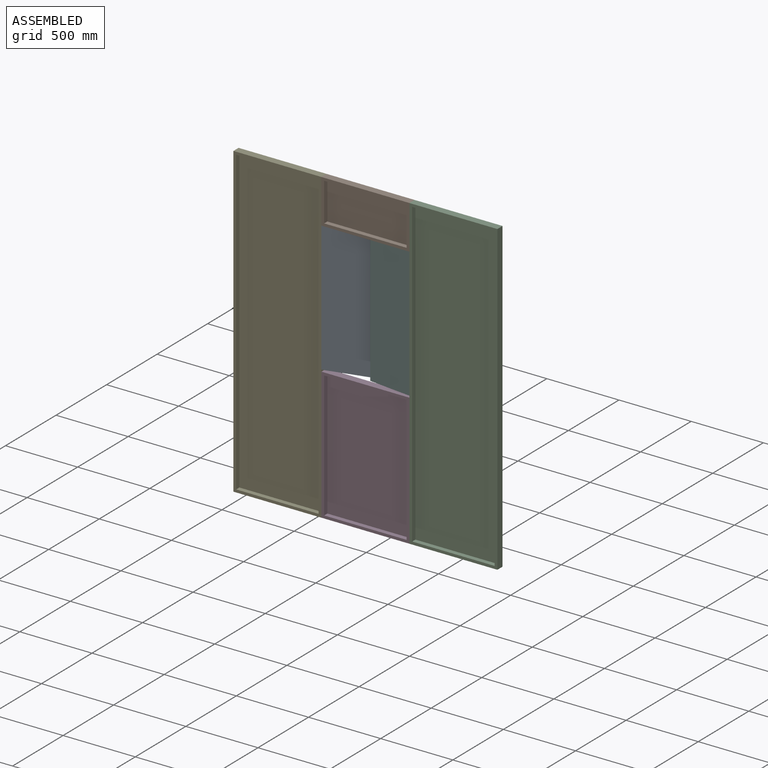
[diagram: assembled view]
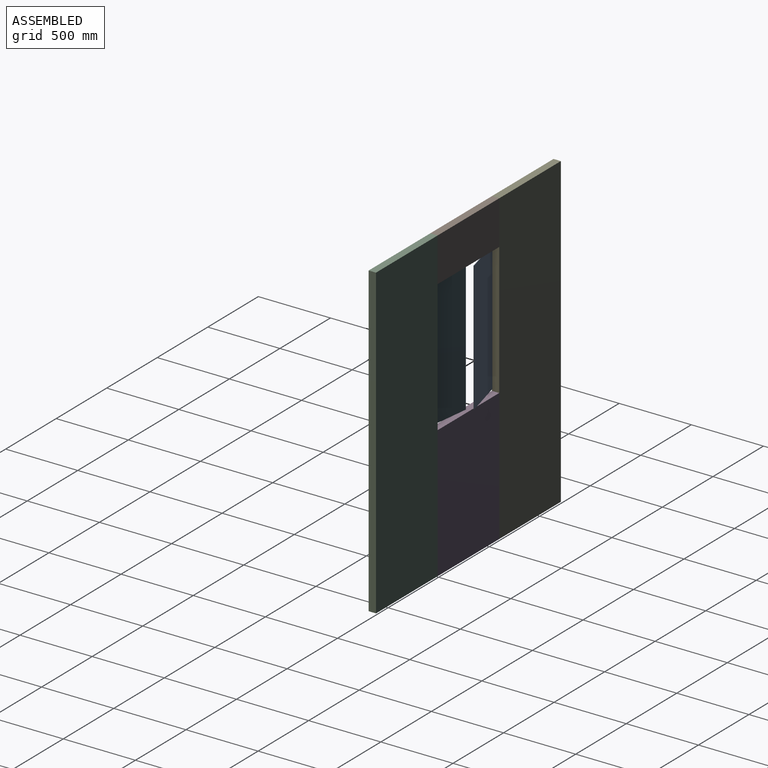
[diagram: assembled view, second angle]
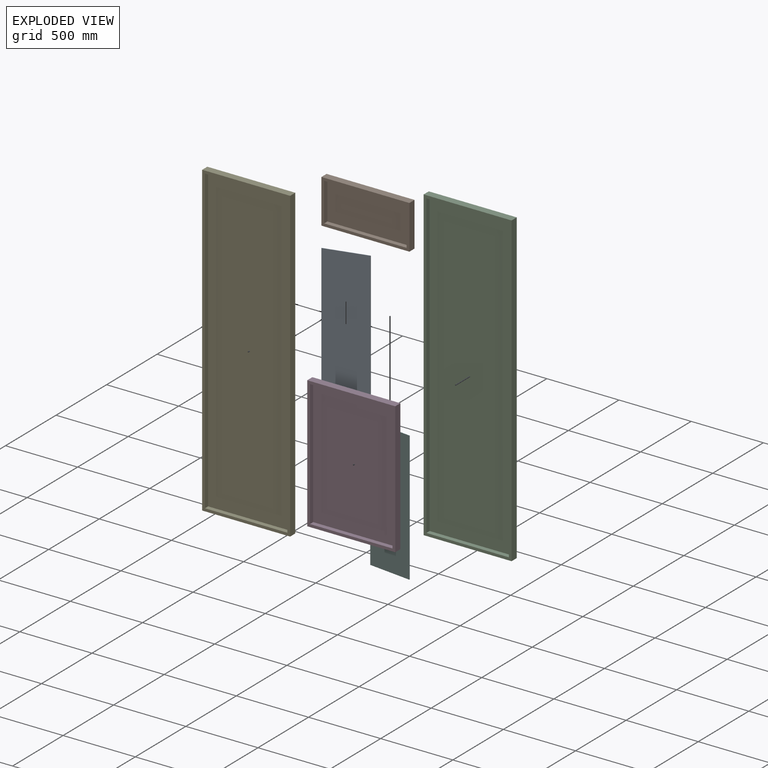
[diagram: exploded view]
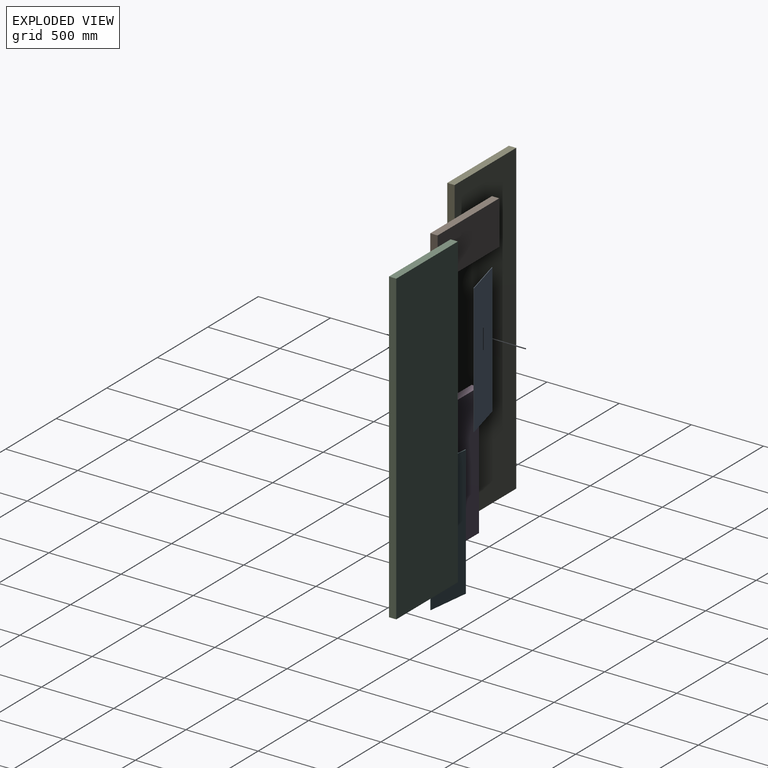
[diagram: exploded view, second angle]
ASSEMBLY  parts=6 mates=5
PART A: 6 faces, bbox 298.5x3.2x901.7 mm
  f0: plane 901.7x3.18mm, normal (-1,0,0), area 2862.9mm2, adj f1,f3,f4,f5
  f1: plane 298.45x3.18mm, normal (0,0,-1), area 947.6mm2, adj f0,f2,f4,f5
  f2: plane 901.7x3.18mm, normal (1,0,0), area 2862.9mm2, adj f1,f3,f4,f5
  f3: plane 298.45x3.18mm, normal (0,0,1), area 947.6mm2, adj f0,f2,f4,f5
  f4: plane 901.7x298.45mm, normal (0,-1,0), area 269112.4mm2, adj f0,f1,f2,f3
  f5: plane 901.7x298.45mm, normal (0,1,0), area 269112.4mm2, adj f0,f1,f2,f3
PART B: 11 faces, bbox 304.8x50.8x609.6 mm
  f0: plane 609.6x50.8mm, normal (-1,0,0), area 30967.7mm2, adj f1,f3,f4,f5
  f1: plane 304.8x50.8mm, normal (0,0,-1), area 15483.8mm2, adj f0,f2,f4,f5
  f2: plane 609.6x50.8mm, normal (1,0,0), area 30967.7mm2, adj f1,f3,f4,f5
  f3: plane 304.8x50.8mm, normal (0,0,1), area 15483.8mm2, adj f0,f2,f4,f5
  f4: plane 609.6x304.8mm, normal (0,-1,0), area 33387mm2, adj f0,f1,f2,f3,f6,f7,f8,f9
  f5: plane 609.6x304.8mm, normal (0,1,0), area 185806.1mm2, adj f0,f1,f2,f3
  f6: plane 571.5x31.75mm, normal (1,0,0), area 18145.1mm2, adj f4,f7,f9,f10
  f7: plane 266.7x31.75mm, normal (0,0,1), area 8467.7mm2, adj f4,f6,f8,f10
  f8: plane 571.5x31.75mm, normal (-1,0,0), area 18145.1mm2, adj f4,f7,f9,f10
  f9: plane 266.7x31.75mm, normal (0,0,-1), area 8467.7mm2, adj f4,f6,f8,f10
  f10: plane 571.5x266.7mm, normal (0,-1,0), area 152419.1mm2, adj f6,f7,f8,f9
PART C: 11 faces, bbox 609.6x50.8x2133.6 mm
  f0: plane 2133.6x50.8mm, normal (1,0,0), area 108386.9mm2, adj f1,f3,f4,f5
  f1: plane 609.6x50.8mm, normal (0,0,1), area 30967.7mm2, adj f0,f2,f4,f5
  f2: plane 2133.6x50.8mm, normal (-1,0,0), area 108386.9mm2, adj f1,f3,f4,f5
  f3: plane 609.6x50.8mm, normal (0,0,-1), area 30967.7mm2, adj f0,f2,f4,f5
  f4: plane 2133.6x609.6mm, normal (0,-1,0), area 103064.3mm2, adj f0,f1,f2,f3,f6,f7,f8,f9
  f5: plane 2133.6x609.6mm, normal (0,1,0), area 1300642.6mm2, adj f0,f1,f2,f3
  f6: plane 2095.5x31.75mm, normal (-1,0,0), area 66532.1mm2, adj f4,f7,f9,f10
  f7: plane 571.5x31.75mm, normal (0,0,-1), area 18145.1mm2, adj f4,f6,f8,f10
  f8: plane 2095.5x31.75mm, normal (1,0,0), area 66532.1mm2, adj f4,f7,f9,f10
  f9: plane 571.5x31.75mm, normal (0,0,1), area 18145.1mm2, adj f4,f6,f8,f10
  f10: plane 2095.5x571.5mm, normal (0,-1,0), area 1197578.2mm2, adj f6,f7,f8,f9
PART D: 11 faces, bbox 609.6x50.8x914.4 mm
  f0: plane 914.4x50.8mm, normal (-1,0,0), area 46451.5mm2, adj f1,f3,f4,f5
  f1: plane 609.6x50.8mm, normal (0,0,-1), area 30967.7mm2, adj f0,f2,f4,f5
  f2: plane 914.4x50.8mm, normal (1,0,0), area 46451.5mm2, adj f1,f3,f4,f5
  f3: plane 609.6x50.8mm, normal (0,0,1), area 30967.7mm2, adj f0,f2,f4,f5
  f4: plane 914.4x609.6mm, normal (0,-1,0), area 56612.8mm2, adj f0,f1,f2,f3,f6,f7,f8,f9
  f5: plane 914.4x609.6mm, normal (0,1,0), area 557418.2mm2, adj f0,f1,f2,f3
  f6: plane 876.3x31.75mm, normal (1,0,0), area 27822.5mm2, adj f4,f7,f9,f10
  f7: plane 571.5x31.75mm, normal (0,0,1), area 18145.1mm2, adj f4,f6,f8,f10
  f8: plane 876.3x31.75mm, normal (-1,0,0), area 27822.5mm2, adj f4,f7,f9,f10
  f9: plane 571.5x31.75mm, normal (0,0,-1), area 18145.1mm2, adj f4,f6,f8,f10
  f10: plane 876.3x571.5mm, normal (0,-1,0), area 500805.5mm2, adj f6,f7,f8,f9
PART E: same geometry as C
PART F: same geometry as A
PLACE A rot(axis=(0,0,-1),165.5deg) t=(-2435.02,191.66,1007.77)mm
PLACE B rot(axis=(0,-1,0),90deg) t=(50.71,317.08,1147.03)mm
PLACE C rot(axis=(0.41,-0.12,0.91),0deg) t=(2424.57,367.88,-209.58)mm
PLACE D rot(axis=(0.41,-0.12,0.91),0deg) t=(-3216.26,317.08,438.33)mm fixed
PLACE E rot(axis=(0.41,-0.12,0.91),0deg) t=(1205.37,367.88,-209.58)mm
PLACE F rot(axis=(0,0,1),173.1deg) t=(-2129.02,338.2,1007.77)mm
MATE fastened B.f4 <-> C.f4  axis (0,-1,0) through (-1537.56,266.28,2571.93)mm
MATE fastened E.f4 <-> D.f4  axis (0,-1,0) through (-2147.16,266.28,438.33)mm
MATE revolute A.f3 <-> B.f0  axis (0,0,-1) through (-2147.16,266.28,2267.13)mm
MATE revolute F.f3 <-> B.f0  axis (0,0,-1) through (-1537.56,266.28,2267.13)mm
MATE fastened D.f4 <-> C.f4  axis (0,-1,0) through (-1537.56,266.28,438.33)mm
